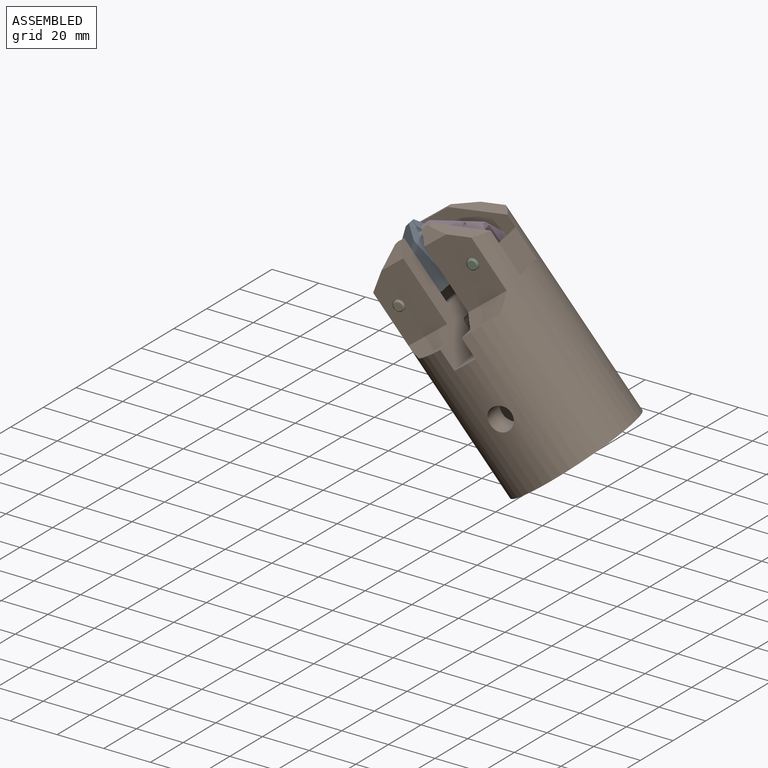
[diagram: assembled view]
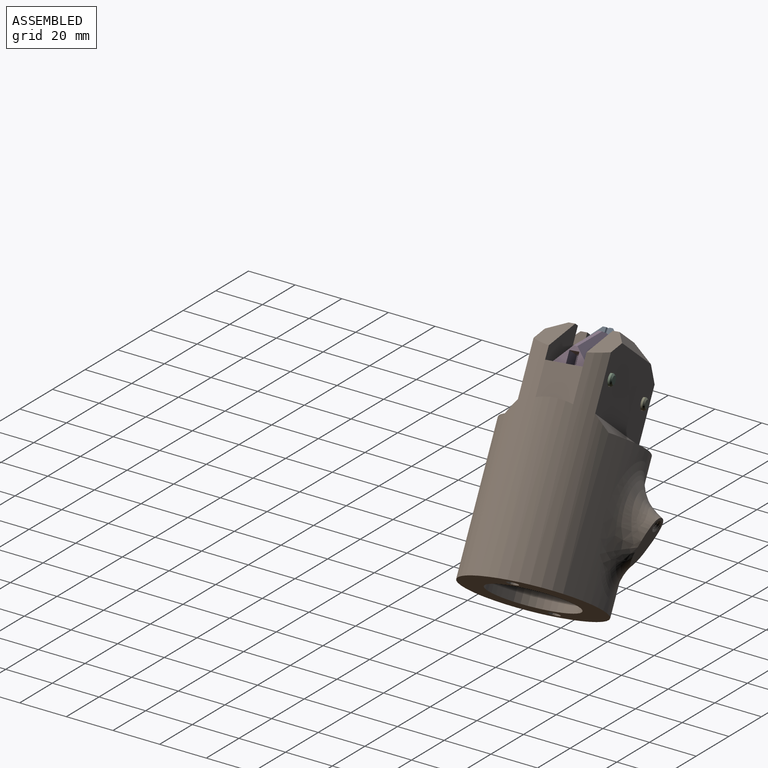
[diagram: assembled view, second angle]
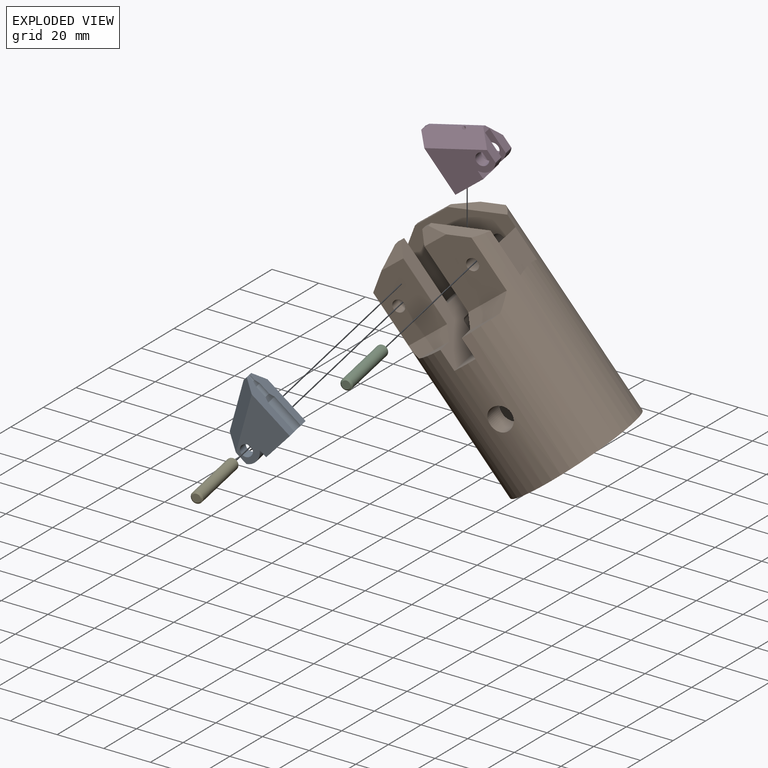
[diagram: exploded view]
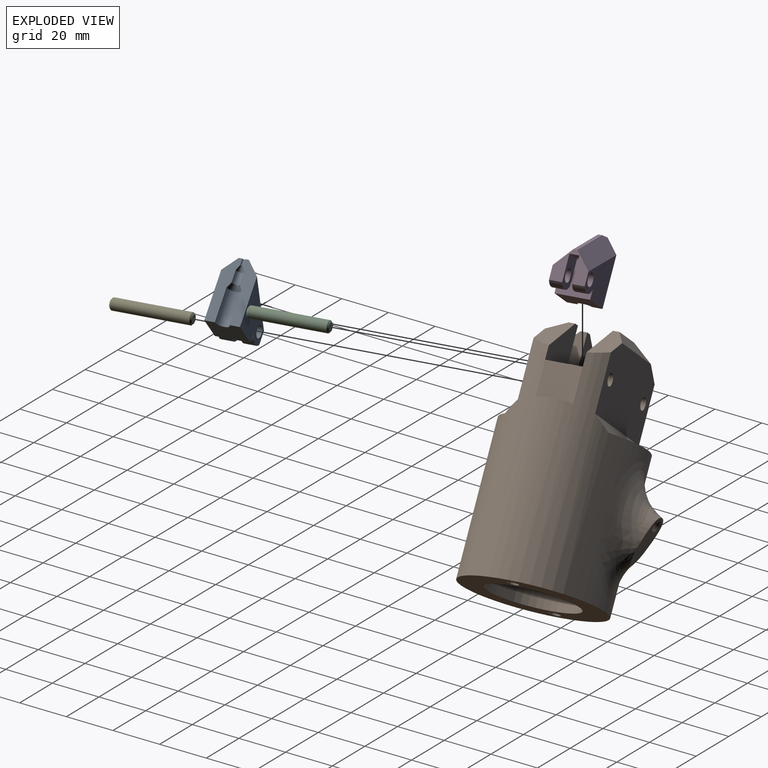
[diagram: exploded view, second angle]
ASSEMBLY  parts=5 mates=4
PART A: 26 faces, bbox 21.7x13.8x25.5 mm
  f0: plane 25.4x6.29mm, normal (1,0,0), area 106.1mm2, adj f10,f11,f12,f13,f14,f15,f16,f17
  f1: plane 9.82x3.81mm, normal (-1,0,0), area 37.4mm2, adj f2,f3,f4,f7
  f2: plane 12.17x8.13mm, normal (0,1,0), area 74.3mm2, adj f1,f4,f5,f7,f9
  f3: plane 12.17x8.13mm, normal (0,-1,0), area 74.3mm2, adj f1,f4,f7,f8,f9
  f4: plane 8.13x3.81mm, normal (0,0,1), area 29.7mm2, adj f1,f2,f3,f9,f22
  f5: cylinder r=2.5mm len=5mm, axis (0,-1,0), area 75.9mm2, adj f2,f19
  f6: plane 13.72x3.63mm, normal (-1,0,0), area 49.8mm2, adj f7,f18,f19,f20
  f7: cylinder r=5.14mm len=13.72mm, axis (0,1,0), area 94.3mm2, adj f1,f2,f3,f6,f9,f18,f19
  f8: cylinder r=2.5mm len=5.08mm, axis (0,-1,0), area 79.9mm2, adj f3,f18
  f9: plane 13.72x12.33mm, normal (-1,0,0), area 87.1mm2, adj f2,f3,f4,f7,f18,f19,f23,f24
  f10: cone r=1.76mm half-angle=25deg, axis (0,0,1), area 8.2mm2, adj f0,f12,f14,f21
  f11: plane 3.91x2.54mm, normal (0,0,-1), area 6.4mm2, adj f0,f12,f21,f23,f24,f25
  f12: cylinder r=0.57mm len=2.54mm, axis (0,0,-1), area 4.6mm2, adj f0,f10,f11,f21
  f13: cone r=2.86mm half-angle=30deg, axis (0,0,1), area 14.4mm2, adj f0,f14,f17,f21
  f14: cylinder r=1.59mm len=4.87mm, axis (0,0,1), area 24.3mm2, adj f0,f10,f13,f21
  f15: cone r=3.38mm half-angle=30deg, axis (0,0,1), area 2.2mm2, adj f0,f16,f17,f21
  f16: cylinder r=2.79mm len=13.71mm, axis (0,0,1), area 120.4mm2, adj f0,f15,f20,f21
  f17: cylinder r=2.67mm len=5.33mm, axis (0,0,1), area 0.1mm2, adj f0,f13,f15,f21
  f18: plane 21.59x19.85mm, normal (0,1,0), area 269.5mm2, adj f0,f6,f7,f8,f9,f20,f24
  f19: plane 21.59x19.85mm, normal (0,-1,0), area 269.5mm2, adj f5,f6,f7,f9,f20,f21,f25
  f20: plane 13.72x13.43mm, normal (0,0,1), area 171.9mm2, adj f0,f6,f16,f18,f19,f21
  f21: plane 25.4x6.29mm, normal (1,0,0), area 106.1mm2, adj f10,f11,f12,f13,f14,f15,f16,f17
  f22: cylinder r=0.64mm len=5.65mm, axis (0,0,1), area 19.3mm2, adj f4,f23,f25
  f23: plane 19.06x10.17mm, normal (-0.47,0,-0.88), area 32.8mm2, adj f9,f11,f22,f24,f25
  f24: plane 21.59x17.07mm, normal (-0.33,0.71,-0.62), area 208.5mm2, adj f0,f9,f11,f18,f23
  f25: plane 21.72x17.2mm, normal (-0.33,-0.71,-0.62), area 206.6mm2, adj f9,f11,f19,f21,f22,f23
PART B: 99 faces, bbox 60.2x80.4x102.1 mm
  f0: cylinder r=1.9mm len=3.5mm, axis (0,0.93,-0.36), area 0.1mm2, adj f3,f76,f82,f83
  f1: torus R=75.13mm, axis (-1,0,0), area 365.6mm2, adj f2,f16,f28,f68,f77
  f2: bspline ~7.91x6.2mm, area 38.6mm2, adj f1,f68,f77
  f3: bspline ~23.42x15.57mm, area 0.2mm2, adj f0,f80,f82,f83
  f4: bspline ~6.99x3.69mm, area 11.6mm2, adj f5,f76
  f5: bspline ~39.31x27.95mm, area 987.9mm2, adj f4,f6,f7,f76
  f6: bspline ~25.3x22.33mm, area 356.1mm2, adj f5,f7,f76
  f7: cylinder r=27.94mm len=87.31mm, axis (0,0,-1), area 10279.5mm2, adj f5,f6,f9,f10,f11,f13,f15,f18
  f8: plane 2.86x2.54mm, normal (0,0,1), area 7.3mm2, adj f15,f48,f72,f73
  f9: plane 31.75x21.91mm, normal (0,1,0), area 430.5mm2, adj f7,f22,f24,f26,f28,f30,f33,f36
  f10: plane 27.94x18.58mm, normal (0,-1,0), area 477.6mm2, adj f7,f24,f40,f49,f71,f74
  f11: plane 53.97x31.75mm, normal (0,-1,0), area 1114.7mm2, adj f7,f12,f25,f26,f28,f29,f30,f31
  f12: plane 15.87x2.54mm, normal (0,0,1), area 40.3mm2, adj f11,f69,f70,f75
  f13: plane 47.32x27.94mm, normal (0,1,0), area 1239.1mm2, adj f7,f31,f32,f39,f69,f70,f75
  f14: cylinder r=6.99mm len=20.32mm, axis (0,0,-1), area 776.1mm2, adj f42,f47,f48,f49,f65
  f15: plane 31.75x21.91mm, normal (0,1,0), area 430.5mm2, adj f7,f8,f23,f25,f28,f29,f34,f35
  f16: cylinder r=4.45mm len=8.83mm, axis (0,0,-1), area 96.7mm2, adj f1,f17,f28,f66,f67
  f17: plane 11.43x8.33mm, normal (0,0,-1), area 22.3mm2, adj f16,f48,f49,f65,f66,f67
  f18: plane 14.49x7.54mm, normal (0,0,1), area 68mm2, adj f7,f20,f48
  f19: plane 27.94x18.58mm, normal (0,-1,0), area 477.6mm2, adj f7,f20,f23,f48,f72,f73
  f20: plane 18.82x5.32mm, normal (0,-0.71,0.71), area 120mm2, adj f7,f18,f19,f48
  f21: plane 35.81x35.81mm, normal (0,0,-1), area 1.7mm2, adj f27,f43
  f22: plane 2.86x2.54mm, normal (0,0,1), area 7.3mm2, adj f9,f49,f71,f74
  f23: cylinder r=2.5mm len=7.62mm, axis (0,-1,0), area 119.8mm2, adj f15,f19
  f24: cylinder r=2.5mm len=7.62mm, axis (0,-1,0), area 119.8mm2, adj f9,f10
  f25: plane 14.48x0.24mm, normal (0,0,1), area 3.5mm2, adj f11,f15,f29,f35
  f26: plane 14.48x0.24mm, normal (0,0,1), area 3.5mm2, adj f9,f11,f30,f36
  f27: cylinder r=17.91mm len=40.64mm, axis (0,0,-1), area 4490.6mm2, adj f21,f60,f88
  f28: plane 20.32x14.48mm, normal (0,0,1), area 183.6mm2, adj f1,f9,f11,f15,f16,f33,f34,f48
  f29: plane 14.48x1.27mm, normal (1,0,0), area 18.4mm2, adj f11,f15,f25,f34
  f30: plane 14.48x1.27mm, normal (-1,0,0), area 18.4mm2, adj f9,f11,f26,f33
  f31: cylinder r=2.5mm len=7.62mm, axis (0,-1,0), area 119.8mm2, adj f11,f13
  f32: cylinder r=2.5mm len=7.62mm, axis (0,-1,0), area 119.8mm2, adj f11,f13
  f33: cylinder r=2.54mm len=14.48mm, axis (0,-1,0), area 57.8mm2, adj f9,f11,f28,f30
  f34: cylinder r=2.54mm len=14.48mm, axis (0,1,0), area 57.8mm2, adj f11,f15,f28,f29
  f35: plane 14.48x14.04mm, normal (-0.7,0,0.71), area 284.9mm2, adj f11,f15,f25,f64
  f36: plane 14.48x14.04mm, normal (0.7,0,0.71), area 284.9mm2, adj f9,f11,f26,f62
  f37: plane 39.15x8mm, normal (0,0,1), area 215.6mm2, adj f7,f39
  f38: plane 14.49x7.54mm, normal (0,0,1), area 68mm2, adj f7,f40,f49
  f39: plane 47.56x5.32mm, normal (0,0.71,0.71), area 312.9mm2, adj f7,f13,f37
  f40: plane 18.82x5.32mm, normal (0,-0.71,0.71), area 120mm2, adj f7,f10,f38,f49
  f41: cone r=17.89mm half-angle=76.9deg, axis (0,0,-1), area 0mm2, adj f42,f45
  f42: cone r=6.98mm half-angle=89.9deg, axis (0,0,1), area 0mm2, adj f14,f41
  f43: cylinder r=17.89mm len=35.78mm, axis (0,0,1), area 284.2mm2, adj f21,f44
  f44: cone r=17.89mm half-angle=76.9deg, axis (0,0,-1), area 874.4mm2, adj f43,f46
  f45: cylinder r=6.99mm len=13.97mm, axis (0,0,-1), area 0.2mm2, adj f41,f46
  f46: plane 14x14mm, normal (0,0,-1), area 0.6mm2, adj f44,f45
  f47: plane 23.15x10.16mm, normal (0,0,1), area 218.2mm2, adj f7,f14,f48,f49
  f48: plane 47.77x28.16mm, normal (-1,0,0), area 553.1mm2, adj f7,f8,f14,f15,f17,f18,f19,f20
  f49: plane 47.77x28.16mm, normal (1,0,0), area 553.1mm2, adj f7,f9,f10,f14,f17,f22,f28,f38
  f50: plane 5.92x2.54mm, normal (1,0,0), area 7.1mm2, adj f11,f51,f53,f59
  f51: plane 2.54x2.54mm, normal (0,0,1), area 6.5mm2, adj f11,f50,f52,f53
  f52: plane 5.92x2.54mm, normal (-1,0,0), area 7.1mm2, adj f11,f51,f53,f59
  f53: plane 2.54x1.52mm, normal (0,-1,0), area 3.9mm2, adj f50,f51,f52,f59
  f54: plane 2.54x2.54mm, normal (0,0,1), area 6.5mm2, adj f11,f55,f56,f57
  f55: plane 5.92x2.54mm, normal (-1,0,0), area 7.1mm2, adj f11,f54,f57,f58
  f56: plane 5.92x2.54mm, normal (1,0,0), area 7.1mm2, adj f11,f54,f57,f58
  f57: plane 2.54x1.52mm, normal (0,-1,0), area 3.9mm2, adj f54,f55,f56,f58
  f58: cylinder r=5.08mm len=4.4mm, axis (1,0,0), area 13.5mm2, adj f11,f55,f56,f57
  f59: cylinder r=5.08mm len=4.4mm, axis (-1,0,0), area 13.5mm2, adj f11,f50,f52,f53
  f60: cylinder r=5.08mm len=10.16mm, axis (0,-1,0), area 320.2mm2, adj f7,f27
  f61: plane 16.39x2.86mm, normal (0.71,0,0.71), area 13.1mm2, adj f7,f62
  f62: plane 14.48x13.78mm, normal (-1,0,0), area 199.5mm2, adj f7,f36,f61
  f63: plane 16.39x2.86mm, normal (-0.71,0,0.71), area 13.1mm2, adj f7,f64
  f64: plane 14.48x13.78mm, normal (1,0,0), area 199.5mm2, adj f7,f35,f63
  f65: torus R=5.71mm, axis (0,0,-1), area 57mm2, adj f14,f17,f48,f49
  f66: plane 7.62x0.66mm, normal (-0.67,-0.75,0), area 6.8mm2, adj f16,f17,f28,f48
  f67: plane 7.62x0.66mm, normal (0.67,-0.75,0), area 6.8mm2, adj f16,f17,f28,f49
  f68: cylinder r=27.94mm len=2.79mm, axis (0,0,-1), area 0.2mm2, adj f1,f2
  f69: plane 19.43x13.08mm, normal (0.55,0,0.83), area 138mm2, adj f7,f11,f12,f13,f75
  f70: plane 19.43x13.08mm, normal (-0.55,0,0.83), area 138mm2, adj f7,f11,f12,f13,f75
  f71: plane 19.43x13.08mm, normal (-0.55,0,0.83), area 138mm2, adj f7,f9,f10,f22,f74
  f72: plane 19.43x13.08mm, normal (0.55,0,0.83), area 138mm2, adj f7,f8,f15,f19,f73
  f73: plane 10.48x5.08mm, normal (0,-0.71,0.71), area 47.9mm2, adj f8,f19,f48,f72
  f74: plane 10.48x5.08mm, normal (0,-0.71,0.71), area 47.9mm2, adj f10,f22,f49,f71
  f75: plane 31.11x5.08mm, normal (0,0.71,0.71), area 168.8mm2, adj f12,f13,f69,f70
  f76: plane 23.02x12.85mm, normal (0,0.93,-0.36), area 119.6mm2, adj f0,f4,f5,f6,f82,f83
  f77: plane 4.4x4.15mm, normal (0,0.93,-0.36), area 5mm2, adj f1,f2,f78
  f78: cylinder r=1.9mm len=4.16mm, axis (0,0.93,-0.36), area 11.3mm2, adj f77,f79,f81,f82,f83
  f79: cylinder r=1.9mm len=3.92mm, axis (0,0.93,-0.36), area 0.2mm2, adj f78,f80,f82,f83
  f80: cylinder r=1.9mm len=3.54mm, axis (0,0.93,-0.36), area 0.1mm2, adj f3,f79,f82,f83
  f81: plane 0.96x0.88mm, normal (0,0.36,0.93), area 0.5mm2, adj f78,f82,f83
  f82: bspline ~6.93x5.56mm, area 46mm2, adj f0,f3,f76,f78,f79,f80,f81,f83
  f83: bspline ~5.89x5.56mm, area 36.8mm2, adj f0,f3,f76,f78,f79,f80,f81,f82
  f84: extruded ~4.68x2.54mm, area 18mm2, adj f86,f88,f92,f93
  f85: extruded ~4.68x2.54mm, area 18mm2, adj f87,f88,f97,f98
  f86: extruded ~4.61x2.68mm, area 18.1mm2, adj f84,f88,f91,f93
  f87: extruded ~4.61x2.68mm, area 18.1mm2, adj f85,f88,f96,f98
  f88: plane 55.89x55.89mm, normal (0,0,-1), area 1410.5mm2, adj f7,f27,f84,f85,f86,f87,f93,f98
  f89: cone r=0mm half-angle=59deg, axis (0,0,-1), area 14.9mm2, adj f93
  f90: plane 0.76x0.66mm, normal (0,-1,0), area 0.3mm2, adj f91,f92,f93
  f91: bspline ~25.52x6.19mm, area 352.5mm2, adj f86,f90,f92,f93
  f92: bspline ~25.78x6.19mm, area 357.8mm2, adj f84,f90,f91,f93
  f93: cylinder r=2.02mm len=27.94mm, axis (0,0,-1), area 70.1mm2, adj f84,f86,f88,f89,f90,f91,f92
  f94: cone r=0mm half-angle=59deg, axis (0,0,-1), area 14.9mm2, adj f98
  f95: plane 0.76x0.66mm, normal (0,-1,0), area 0.3mm2, adj f96,f97,f98
  f96: bspline ~25.52x6.19mm, area 352.5mm2, adj f87,f95,f97,f98
  f97: bspline ~25.78x6.19mm, area 357.8mm2, adj f85,f95,f96,f98
  f98: cylinder r=2.02mm len=27.94mm, axis (0,0,-1), area 70.1mm2, adj f85,f87,f88,f94,f95,f96,f97
PART C: 5 faces, bbox 4.8x4.8x31.8 mm
  f0: cylinder r=2.38mm len=30.48mm, axis (0,0,-1), area 456mm2, adj f3,f4
  f1: plane 3.49x3.49mm, normal (0,0,1), area 9.6mm2, adj f3
  f2: plane 3.49x3.49mm, normal (0,0,-1), area 9.6mm2, adj f4
  f3: cone r=1.75mm half-angle=45deg, axis (0,0,-1), area 11.6mm2, adj f0,f1
  f4: cone r=2.38mm half-angle=45deg, axis (0,0,1), area 11.6mm2, adj f0,f2
PART D: 26 faces, bbox 21.6x13.7x25.4 mm
  f0: cylinder r=2.67mm len=5.33mm, axis (0,-1,0), area 80.9mm2, adj f2,f18
  f1: plane 13.72x13.43mm, normal (0,0,1), area 171.9mm2, adj f2,f4,f9,f14,f20,f21
  f2: plane 21.59x19.85mm, normal (0,-1,0), area 266.8mm2, adj f0,f1,f3,f14,f15,f20,f25
  f3: plane 13.72x12.33mm, normal (1,0,0), area 87.1mm2, adj f2,f4,f15,f16,f18,f19,f23,f24
  f4: plane 21.59x19.85mm, normal (0,1,0), area 266.8mm2, adj f1,f3,f13,f14,f15,f21,f24
  f5: cylinder r=2.67mm len=5.33mm, axis (0,0,1), area 0.1mm2, adj f11,f12,f20,f21
  f6: cylinder r=1.59mm len=4.87mm, axis (0,0,1), area 24.3mm2, adj f10,f11,f20,f21
  f7: cylinder r=0.57mm len=2.54mm, axis (0,0,-1), area 4.6mm2, adj f8,f10,f20,f21
  f8: plane 3.91x2.54mm, normal (0,0,-1), area 6.4mm2, adj f7,f20,f21,f23,f24,f25
  f9: cylinder r=2.79mm len=13.71mm, axis (0,0,1), area 120.4mm2, adj f1,f12,f20,f21
  f10: cone r=1.76mm half-angle=25deg, axis (0,0,1), area 8.2mm2, adj f6,f7,f20,f21
  f11: cone r=2.86mm half-angle=30deg, axis (0,0,1), area 14.4mm2, adj f5,f6,f20,f21
  f12: cone r=3.38mm half-angle=30deg, axis (0,0,1), area 2.2mm2, adj f5,f9,f20,f21
  f13: cylinder r=2.67mm len=5.33mm, axis (0,-1,0), area 85.1mm2, adj f4,f16
  f14: plane 13.72x3.63mm, normal (1,0,0), area 49.8mm2, adj f1,f2,f4,f15
  f15: cylinder r=5.14mm len=13.72mm, axis (0,1,0), area 94.3mm2, adj f2,f3,f4,f14,f16,f17,f18
  f16: plane 12.17x8.13mm, normal (0,-1,0), area 71.6mm2, adj f3,f13,f15,f17,f19
  f17: plane 9.82x3.81mm, normal (1,0,0), area 37.4mm2, adj f15,f16,f18,f19
  f18: plane 12.17x8.13mm, normal (0,1,0), area 71.6mm2, adj f0,f3,f15,f17,f19
  f19: plane 8.13x3.81mm, normal (0,0,1), area 29.7mm2, adj f3,f16,f17,f18,f22
  f20: plane 25.4x6.29mm, normal (-1,0,0), area 106.1mm2, adj f1,f2,f5,f6,f7,f8,f9,f10
  f21: plane 25.4x6.29mm, normal (-1,0,0), area 106.1mm2, adj f1,f4,f5,f6,f7,f8,f9,f10
  f22: cylinder r=0.64mm len=5.75mm, axis (0,0,1), area 20.2mm2, adj f19,f23,f24
  f23: plane 19.05x10.16mm, normal (0.47,0,-0.88), area 32.5mm2, adj f3,f8,f22,f24,f25
  f24: plane 21.6x17.08mm, normal (0.33,0.71,-0.62), area 207mm2, adj f3,f4,f8,f21,f22,f23
  f25: plane 21.59x17.07mm, normal (0.33,-0.71,-0.62), area 208.5mm2, adj f2,f3,f8,f20,f23
PART E: same geometry as C
PLACE A rot(axis=(-0.91,-0.09,-0.4),175.6deg) t=(-58.85,33.86,65.78)mm
PLACE B rot(axis=(0.09,-0.96,0.27),38.6deg) t=(17.87,41.4,5.65)mm
PLACE C rot(axis=(0.97,-0.05,0.24),93.4deg) t=(-16.4,51.3,77.17)mm
PLACE D rot(axis=(-0.94,-0.09,-0.32),176.5deg) t=(-56.79,34.26,68.63)mm
PLACE E rot(axis=(0.04,0.72,-0.7),160.2deg) t=(-44.25,45.89,55.73)mm
MATE revolute A.f5 <-> B.f24  axis (-0.19,0.98,0) through (-42.53,37.03,55.73)mm
MATE revolute C.f0 <-> B.f23  axis (0.19,-0.98,0) through (-10.46,20.76,77.17)mm
MATE revolute D.f0 <-> B.f23  axis (-0.19,0.98,0) through (-14.68,42.45,77.17)mm
MATE revolute E.f0 <-> B.f24  axis (0.19,-0.98,0) through (-38.31,15.34,55.73)mm
